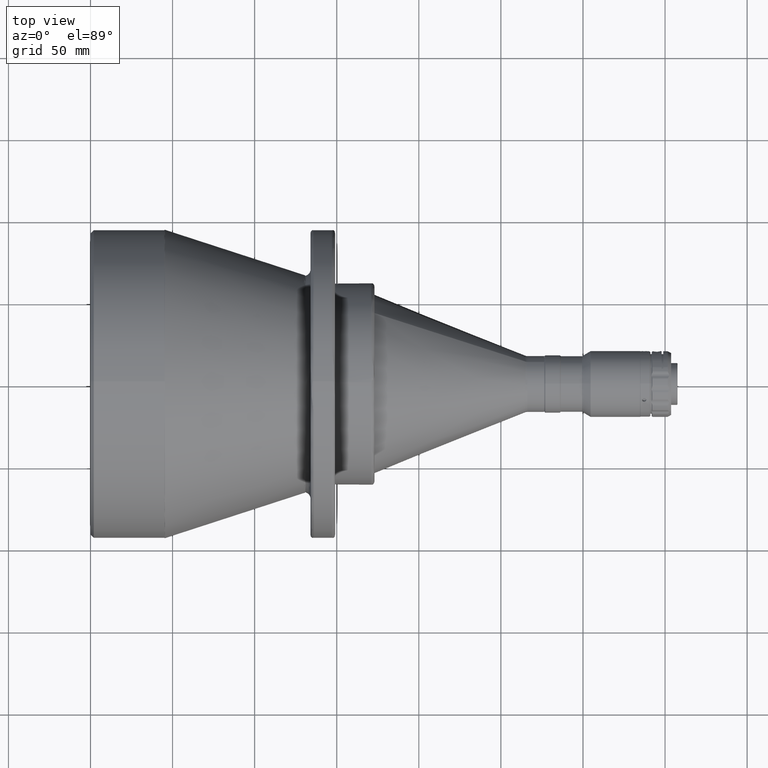
[diagram: clean part render]
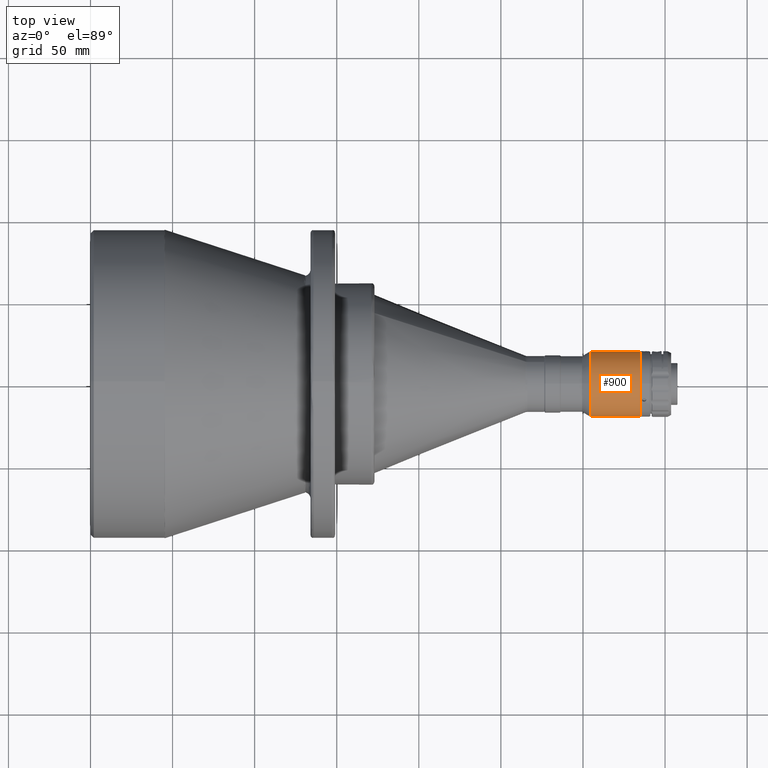
[diagram: same view with one face highlighted and labeled with its STEP entity id]
A machine part, top view. The second image highlights one B-rep face of the part: STEP entity #900.
In plain terms, the highlighted cylindrical surface (edge-blend (fillet) strip) has radius 20 mm, axis along (-1, -0, -0).
Its self-contained STEP definition (entity closure, byte-faithful):
#59 = CARTESIAN_POINT ( 'NONE',  ( 304.6461524229999900, 0.0000000000000000000, 0.0000000000000000000 ) ) ;
#136 = DIRECTION ( 'NONE',  ( -1.000000000000000000, -1.734723475976807300E-016, -0.0000000000000000000 ) ) ;
#330 = DIRECTION ( 'NONE',  ( -1.000000000000000000, 0.0000000000000000000, 0.0000000000000000000 ) ) ;
#549 = ORIENTED_EDGE ( 'NONE', *, *, #4645, .F. ) ;
#775 = CARTESIAN_POINT ( 'NONE',  ( 334.7799999999999700, -20.00000000000000000, 0.0000000000000000000 ) ) ;
#900 = ADVANCED_FACE ( 'NONE', ( #5290 ), #1791, .T. ) ;
#1162 = LINE ( 'NONE', #4278, #3591 ) ;
#1171 = CIRCLE ( 'NONE', #2306, 20.00000000000000000 ) ;
#1324 = CARTESIAN_POINT ( 'NONE',  ( 304.6461524229999900, -20.00000000000000000, 0.0000000000000000000 ) ) ;
#1340 = LINE ( 'NONE', #3520, #2460 ) ;
#1346 = DIRECTION ( 'NONE',  ( -1.000000000000000000, -1.734723475976807300E-016, -0.0000000000000000000 ) ) ;
#1351 = ORIENTED_EDGE ( 'NONE', *, *, #4316, .T. ) ;
#1645 = VERTEX_POINT ( 'NONE', #4886 ) ;
#1676 = EDGE_CURVE ( 'NONE', #2424, #2186, #1340, .T. ) ;
#1704 = CARTESIAN_POINT ( 'NONE',  ( 334.7799999999999700, 20.00000000000000000, 2.449293598294706900E-015 ) ) ;
#1782 = VERTEX_POINT ( 'NONE', #2572 ) ;
#1791 = CYLINDRICAL_SURFACE ( 'NONE', #5948, 20.00000000000000000 ) ;
#1944 = DIRECTION ( 'NONE',  ( 0.0000000000000000000, -1.000000000000000000, 0.0000000000000000000 ) ) ;
#2042 = CIRCLE ( 'NONE', #4296, 20.00000000000000000 ) ;
#2069 = VERTEX_POINT ( 'NONE', #1704 ) ;
#2186 = VERTEX_POINT ( 'NONE', #1324 ) ;
#2292 = CARTESIAN_POINT ( 'NONE',  ( 334.7799999999999700, -2.468842716713520400E-040, 0.0000000000000000000 ) ) ;
#2306 = AXIS2_PLACEMENT_3D ( 'NONE', #59, #3530, #4899 ) ;
#2403 = ORIENTED_EDGE ( 'NONE', *, *, #3145, .F. ) ;
#2424 = VERTEX_POINT ( 'NONE', #775 ) ;
#2460 = VECTOR ( 'NONE', #136, 1000.000000000000000 ) ;
#2572 = CARTESIAN_POINT ( 'NONE',  ( 304.6461524229999900, 20.00000000000000000, 2.449293598294706900E-015 ) ) ;
#2874 = CARTESIAN_POINT ( 'NONE',  ( 334.7799999999999700, 0.0000000000000000000, 0.0000000000000000000 ) ) ;
#3036 = ORIENTED_EDGE ( 'NONE', *, *, #1676, .F. ) ;
#3109 = EDGE_CURVE ( 'NONE', #2424, #2069, #3289, .T. ) ;
#3129 = DIRECTION ( 'NONE',  ( 0.0000000000000000000, 0.0000000000000000000, 1.000000000000000000 ) ) ;
#3145 = EDGE_CURVE ( 'NONE', #1645, #1782, #1171, .T. ) ;
#3289 = CIRCLE ( 'NONE', #3408, 20.00000000000000000 ) ;
#3408 = AXIS2_PLACEMENT_3D ( 'NONE', #2292, #1346, #3432 ) ;
#3432 = DIRECTION ( 'NONE',  ( 0.0000000000000000000, -1.000000000000000000, 0.0000000000000000000 ) ) ;
#3520 = CARTESIAN_POINT ( 'NONE',  ( 334.7799999999999700, -20.00000000000000000, 0.0000000000000000000 ) ) ;
#3530 = DIRECTION ( 'NONE',  ( -1.000000000000000000, 0.0000000000000000000, 0.0000000000000000000 ) ) ;
#3591 = VECTOR ( 'NONE', #5755, 1000.000000000000000 ) ;
#3882 = ORIENTED_EDGE ( 'NONE', *, *, #3109, .T. ) ;
#4278 = CARTESIAN_POINT ( 'NONE',  ( 334.7799999999999700, 20.00000000000000000, 2.449293598294706500E-015 ) ) ;
#4296 = AXIS2_PLACEMENT_3D ( 'NONE', #6022, #330, #3129 ) ;
#4316 = EDGE_CURVE ( 'NONE', #2069, #1782, #1162, .T. ) ;
#4645 = EDGE_CURVE ( 'NONE', #2186, #1645, #2042, .T. ) ;
#4737 = EDGE_LOOP ( 'NONE', ( #3882, #1351, #2403, #549, #3036 ) ) ;
#4843 = DIRECTION ( 'NONE',  ( -1.000000000000000000, -1.734723475976807300E-016, -0.0000000000000000000 ) ) ;
#4886 = CARTESIAN_POINT ( 'NONE',  ( 304.6461524229999900, 2.449293598294704500E-015, 19.99999999999998200 ) ) ;
#4899 = DIRECTION ( 'NONE',  ( 0.0000000000000000000, 0.0000000000000000000, 1.000000000000000000 ) ) ;
#5290 = FACE_OUTER_BOUND ( 'NONE', #4737, .T. ) ;
#5755 = DIRECTION ( 'NONE',  ( -1.000000000000000000, -1.734723475976807300E-016, -0.0000000000000000000 ) ) ;
#5948 = AXIS2_PLACEMENT_3D ( 'NONE', #2874, #4843, #1944 ) ;
#6022 = CARTESIAN_POINT ( 'NONE',  ( 304.6461524229999900, 0.0000000000000000000, 0.0000000000000000000 ) ) ;